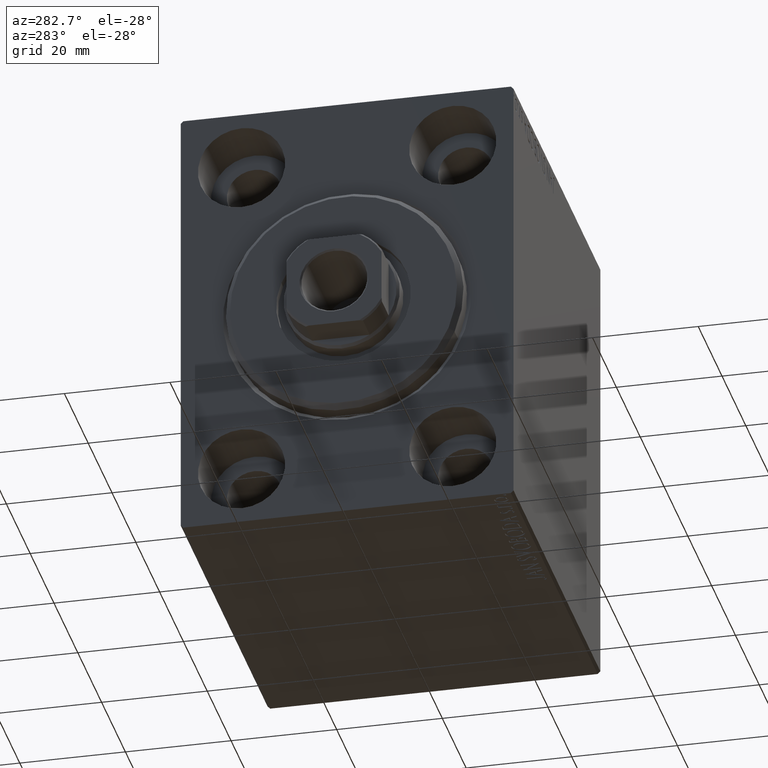
[diagram: clean part render]
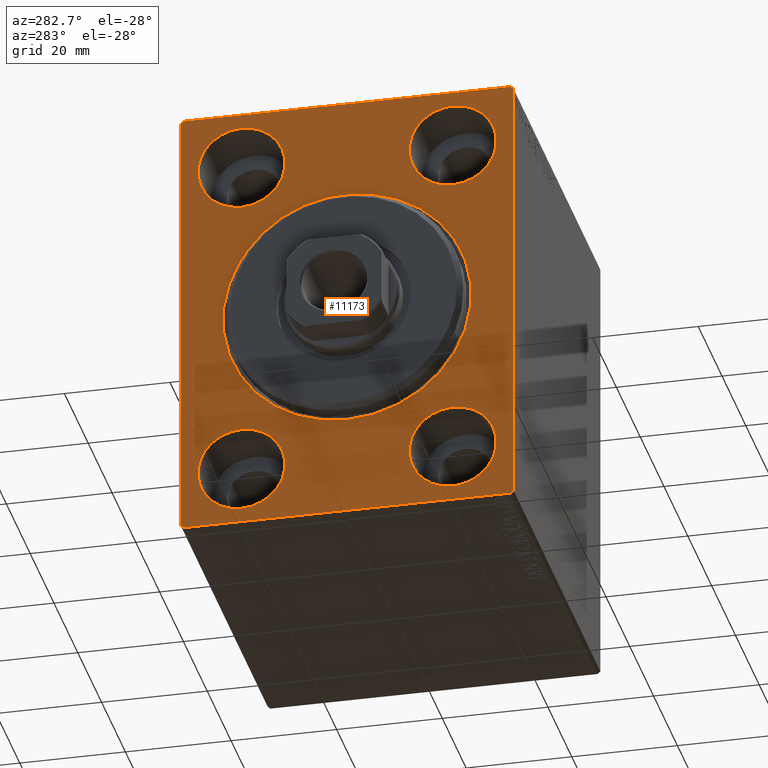
[diagram: same view with one face highlighted and labeled with its STEP entity id]
A machine part, auxiliary view. The second image highlights one B-rep face of the part: STEP entity #11173.
In plain terms, the highlighted planar face has unit normal (1, 0, 0).
Its self-contained STEP definition (entity closure, byte-faithful):
#508 = CARTESIAN_POINT ( 'NONE',  ( 0.000000000000000000, -20.00000000000000355, -39.74999999999999289 ) ) ;
#661 = ORIENTED_EDGE ( 'NONE', *, *, #4673, .F. ) ;
#667 = VERTEX_POINT ( 'NONE', #20773 ) ;
#994 = DIRECTION ( 'NONE',  ( 1.000000000000000000, 0.000000000000000000, 0.000000000000000000 ) ) ;
#1085 = CARTESIAN_POINT ( 'NONE',  ( 0.000000000000000000, 31.00000000000001421, -42.50000000000000711 ) ) ;
#1182 = FACE_OUTER_BOUND ( 'NONE', #41743, .T. ) ;
#1453 = CARTESIAN_POINT ( 'NONE',  ( 0.000000000000000000, -19.99999999999999645, 39.74999999999999289 ) ) ;
#2063 = DIRECTION ( 'NONE',  ( 1.000000000000000000, 0.000000000000000000, 0.000000000000000000 ) ) ;
#2166 = EDGE_CURVE ( 'NONE', #27525, #32272, #26700, .T. ) ;
#2452 = DIRECTION ( 'NONE',  ( 0.000000000000000000, 0.000000000000000000, 1.000000000000000000 ) ) ;
#2460 = ORIENTED_EDGE ( 'NONE', *, *, #17244, .F. ) ;
#2686 = VECTOR ( 'NONE', #26496, 1000.000000000000114 ) ;
#2808 = VERTEX_POINT ( 'NONE', #12882 ) ;
#3252 = ORIENTED_EDGE ( 'NONE', *, *, #26462, .T. ) ;
#3406 = EDGE_CURVE ( 'NONE', #667, #26705, #16681, .T. ) ;
#3726 = CIRCLE ( 'NONE', #36895, 8.250000000000000000 ) ;
#3899 = AXIS2_PLACEMENT_3D ( 'NONE', #4319, #994, #27722 ) ;
#4319 = CARTESIAN_POINT ( 'NONE',  ( 0.000000000000000000, 0.000000000000000000, 0.000000000000000000 ) ) ;
#4426 = LINE ( 'NONE', #7731, #25029 ) ;
#4442 = CARTESIAN_POINT ( 'NONE',  ( 0.000000000000000000, 20.00000000000000355, 31.50000000000000000 ) ) ;
#4610 = VERTEX_POINT ( 'NONE', #10088 ) ;
#4673 = EDGE_CURVE ( 'NONE', #10067, #26705, #39730, .T. ) ;
#4732 = FACE_BOUND ( 'NONE', #17452, .T. ) ;
#5019 = DIRECTION ( 'NONE',  ( 0.000000000000000000, 0.000000000000000000, 1.000000000000000000 ) ) ;
#5331 = CARTESIAN_POINT ( 'NONE',  ( 0.000000000000000000, -20.00000000000000355, -31.49999999999999289 ) ) ;
#5380 = PLANE ( 'NONE',  #14187 ) ;
#5647 = DIRECTION ( 'NONE',  ( -1.000000000000000000, 0.000000000000000000, 0.000000000000000000 ) ) ;
#5685 = AXIS2_PLACEMENT_3D ( 'NONE', #30267, #36709, #2452 ) ;
#5711 = CARTESIAN_POINT ( 'NONE',  ( 0.000000000000000000, -20.00000000000000355, -31.49999999999999289 ) ) ;
#5805 = VECTOR ( 'NONE', #20740, 1000.000000000000000 ) ;
#6113 = CARTESIAN_POINT ( 'NONE',  ( 0.000000000000000000, -31.50000000000000000, 42.49999999999999289 ) ) ;
#6306 = CARTESIAN_POINT ( 'NONE',  ( 0.000000000000000000, 20.00000000000000355, 23.25000000000000355 ) ) ;
#6328 = DIRECTION ( 'NONE',  ( 0.000000000000000000, 0.000000000000000000, -1.000000000000000000 ) ) ;
#6403 = CARTESIAN_POINT ( 'NONE',  ( 0.000000000000000000, -31.50000000000000000, 41.99999999999999289 ) ) ;
#7046 = DIRECTION ( 'NONE',  ( 0.000000000000000000, 0.000000000000000000, 1.000000000000000000 ) ) ;
#7731 = CARTESIAN_POINT ( 'NONE',  ( 0.000000000000000000, 31.00000000000000000, 42.50000000000000711 ) ) ;
#7913 = EDGE_CURVE ( 'NONE', #17258, #14310, #16956, .T. ) ;
#7980 = CIRCLE ( 'NONE', #9362, 8.250000000000000000 ) ;
#8245 = DIRECTION ( 'NONE',  ( 1.000000000000000000, 0.000000000000000000, 0.000000000000000000 ) ) ;
#8567 = CARTESIAN_POINT ( 'NONE',  ( 0.000000000000000000, 31.50000000000000000, 42.50000000000000711 ) ) ;
#8659 = ORIENTED_EDGE ( 'NONE', *, *, #19597, .F. ) ;
#8694 = FACE_BOUND ( 'NONE', #27913, .T. ) ;
#9193 = ORIENTED_EDGE ( 'NONE', *, *, #14999, .F. ) ;
#9362 = AXIS2_PLACEMENT_3D ( 'NONE', #32599, #5647, #29931 ) ;
#9510 = DIRECTION ( 'NONE',  ( 0.000000000000000000, 0.000000000000000000, 1.000000000000000000 ) ) ;
#10033 = AXIS2_PLACEMENT_3D ( 'NONE', #31965, #35292, #5019 ) ;
#10067 = VERTEX_POINT ( 'NONE', #43490 ) ;
#10088 = CARTESIAN_POINT ( 'NONE',  ( 0.000000000000000000, 19.99999999999999645, -23.24999999999999289 ) ) ;
#10750 = ORIENTED_EDGE ( 'NONE', *, *, #22716, .F. ) ;
#11173 = ADVANCED_FACE ( 'NONE', ( #8694, #28780, #11788, #38559, #4732, #1182 ), #5380, .F. ) ;
#11249 = LINE ( 'NONE', #16624, #5805 ) ;
#11254 = CIRCLE ( 'NONE', #21099, 8.250000000000000000 ) ;
#11535 = ORIENTED_EDGE ( 'NONE', *, *, #2166, .T. ) ;
#11573 = CARTESIAN_POINT ( 'NONE',  ( 0.000000000000000000, 0.000000000000000000, 0.000000000000000000 ) ) ;
#11788 = FACE_BOUND ( 'NONE', #16595, .T. ) ;
#12480 = CARTESIAN_POINT ( 'NONE',  ( 0.000000000000000000, 20.00000000000000355, 39.74999999999999289 ) ) ;
#12603 = VECTOR ( 'NONE', #6328, 1000.000000000000000 ) ;
#12807 = LINE ( 'NONE', #29002, #2686 ) ;
#12882 = CARTESIAN_POINT ( 'NONE',  ( 0.000000000000000000, 19.99999999999999645, -39.74999999999999289 ) ) ;
#14187 = AXIS2_PLACEMENT_3D ( 'NONE', #11573, #2063, #42094 ) ;
#14310 = VERTEX_POINT ( 'NONE', #12480 ) ;
#14767 = ORIENTED_EDGE ( 'NONE', *, *, #23788, .F. ) ;
#14805 = DIRECTION ( 'NONE',  ( 0.000000000000000000, 0.000000000000000000, 1.000000000000000000 ) ) ;
#14999 = EDGE_CURVE ( 'NONE', #28408, #16553, #3726, .T. ) ;
#15662 = CARTESIAN_POINT ( 'NONE',  ( 0.000000000000000000, 0.000000000000000000, 23.50000000000003197 ) ) ;
#15791 = ORIENTED_EDGE ( 'NONE', *, *, #3406, .T. ) ;
#16225 = VECTOR ( 'NONE', #32636, 1000.000000000000000 ) ;
#16553 = VERTEX_POINT ( 'NONE', #35822 ) ;
#16595 = EDGE_LOOP ( 'NONE', ( #2460, #36640 ) ) ;
#16624 = CARTESIAN_POINT ( 'NONE',  ( 0.000000000000000000, -31.50000000000000000, -42.50000000000000711 ) ) ;
#16681 = LINE ( 'NONE', #27065, #29506 ) ;
#16956 = CIRCLE ( 'NONE', #5685, 8.249999999999992895 ) ;
#17244 = EDGE_CURVE ( 'NONE', #18587, #17331, #17772, .T. ) ;
#17258 = VERTEX_POINT ( 'NONE', #6306 ) ;
#17331 = VERTEX_POINT ( 'NONE', #41020 ) ;
#17396 = ORIENTED_EDGE ( 'NONE', *, *, #37939, .F. ) ;
#17452 = EDGE_LOOP ( 'NONE', ( #37488, #9193 ) ) ;
#17570 = EDGE_CURVE ( 'NONE', #667, #21265, #11249, .T. ) ;
#17576 = VERTEX_POINT ( 'NONE', #30918 ) ;
#17772 = CIRCLE ( 'NONE', #10033, 8.249999999999992895 ) ;
#18166 = DIRECTION ( 'NONE',  ( 0.000000000000000000, 0.000000000000000000, -1.000000000000000000 ) ) ;
#18587 = VERTEX_POINT ( 'NONE', #1453 ) ;
#19544 = ORIENTED_EDGE ( 'NONE', *, *, #25908, .T. ) ;
#19597 = EDGE_CURVE ( 'NONE', #4610, #2808, #7980, .T. ) ;
#19719 = CARTESIAN_POINT ( 'NONE',  ( 0.000000000000000000, -31.50000000000000000, -42.00000000000000711 ) ) ;
#19816 = DIRECTION ( 'NONE',  ( 0.000000000000000000, 0.000000000000000000, 1.000000000000000000 ) ) ;
#20248 = EDGE_CURVE ( 'NONE', #16553, #28408, #21353, .T. ) ;
#20601 = CARTESIAN_POINT ( 'NONE',  ( 0.000000000000000000, 2.877919977996283870E-15, -23.50000000000003197 ) ) ;
#20740 = DIRECTION ( 'NONE',  ( 0.000000000000000000, 1.000000000000000000, 0.000000000000000000 ) ) ;
#20773 = CARTESIAN_POINT ( 'NONE',  ( 0.000000000000000000, -31.00000000000000000, -42.50000000000000711 ) ) ;
#21099 = AXIS2_PLACEMENT_3D ( 'NONE', #39822, #29610, #9510 ) ;
#21265 = VERTEX_POINT ( 'NONE', #1085 ) ;
#21353 = CIRCLE ( 'NONE', #29820, 8.250000000000000000 ) ;
#21908 = CIRCLE ( 'NONE', #36766, 8.249999999999992895 ) ;
#22119 = VECTOR ( 'NONE', #23260, 1000.000000000000000 ) ;
#22716 = EDGE_CURVE ( 'NONE', #17576, #36891, #43430, .T. ) ;
#23260 = DIRECTION ( 'NONE',  ( 0.000000000000000000, -1.632680918566406300E-16, 1.000000000000000000 ) ) ;
#23351 = DIRECTION ( 'NONE',  ( -1.000000000000000000, 0.000000000000000000, 0.000000000000000000 ) ) ;
#23788 = EDGE_CURVE ( 'NONE', #14310, #17258, #42671, .T. ) ;
#24080 = VERTEX_POINT ( 'NONE', #34665 ) ;
#24772 = VECTOR ( 'NONE', #43340, 1000.000000000000114 ) ;
#24926 = ORIENTED_EDGE ( 'NONE', *, *, #40615, .F. ) ;
#25029 = VECTOR ( 'NONE', #41136, 1000.000000000000114 ) ;
#25908 = EDGE_CURVE ( 'NONE', #34863, #36891, #4426, .T. ) ;
#26056 = LINE ( 'NONE', #6403, #24772 ) ;
#26462 = EDGE_CURVE ( 'NONE', #32272, #27525, #37767, .T. ) ;
#26496 = DIRECTION ( 'NONE',  ( 0.000000000000000000, -0.7071067811865474617, -0.7071067811865474617 ) ) ;
#26700 = CIRCLE ( 'NONE', #40850, 23.50000000000003197 ) ;
#26705 = VERTEX_POINT ( 'NONE', #19719 ) ;
#27065 = CARTESIAN_POINT ( 'NONE',  ( 0.000000000000000000, -31.00000000000000000, -42.50000000000000711 ) ) ;
#27525 = VERTEX_POINT ( 'NONE', #15662 ) ;
#27571 = CARTESIAN_POINT ( 'NONE',  ( 0.000000000000000000, -19.99999999999999645, 31.50000000000000000 ) ) ;
#27678 = CARTESIAN_POINT ( 'NONE',  ( 0.000000000000000000, 0.000000000000000000, 0.000000000000000000 ) ) ;
#27722 = DIRECTION ( 'NONE',  ( 0.000000000000000000, 0.000000000000000000, -1.000000000000000000 ) ) ;
#27913 = EDGE_LOOP ( 'NONE', ( #11535, #3252 ) ) ;
#28408 = VERTEX_POINT ( 'NONE', #508 ) ;
#28780 = FACE_BOUND ( 'NONE', #37081, .T. ) ;
#29002 = CARTESIAN_POINT ( 'NONE',  ( 0.000000000000000000, 31.50000000000001421, -42.00000000000000711 ) ) ;
#29087 = LINE ( 'NONE', #8567, #16225 ) ;
#29506 = VECTOR ( 'NONE', #40594, 1000.000000000000114 ) ;
#29610 = DIRECTION ( 'NONE',  ( -1.000000000000000000, 0.000000000000000000, 0.000000000000000000 ) ) ;
#29820 = AXIS2_PLACEMENT_3D ( 'NONE', #5331, #43134, #32923 ) ;
#29931 = DIRECTION ( 'NONE',  ( 0.000000000000000000, 0.000000000000000000, 1.000000000000000000 ) ) ;
#30267 = CARTESIAN_POINT ( 'NONE',  ( 0.000000000000000000, 20.00000000000000355, 31.50000000000000000 ) ) ;
#30918 = CARTESIAN_POINT ( 'NONE',  ( 0.000000000000000000, 31.50000000000001421, -42.00000000000000711 ) ) ;
#31343 = EDGE_LOOP ( 'NONE', ( #14767, #39529 ) ) ;
#31965 = CARTESIAN_POINT ( 'NONE',  ( 0.000000000000000000, -19.99999999999999645, 31.50000000000000000 ) ) ;
#32272 = VERTEX_POINT ( 'NONE', #20601 ) ;
#32599 = CARTESIAN_POINT ( 'NONE',  ( 0.000000000000000000, 19.99999999999999645, -31.49999999999999289 ) ) ;
#32636 = DIRECTION ( 'NONE',  ( 0.000000000000000000, -1.000000000000000000, -2.202823461557850341E-16 ) ) ;
#32923 = DIRECTION ( 'NONE',  ( 0.000000000000000000, 0.000000000000000000, 1.000000000000000000 ) ) ;
#33890 = CARTESIAN_POINT ( 'NONE',  ( 0.000000000000000000, 31.50000000000001421, -42.50000000000000711 ) ) ;
#33965 = ORIENTED_EDGE ( 'NONE', *, *, #43719, .T. ) ;
#34665 = CARTESIAN_POINT ( 'NONE',  ( 0.000000000000000000, -31.00000000000000000, 42.49999999999999289 ) ) ;
#34863 = VERTEX_POINT ( 'NONE', #40468 ) ;
#34904 = EDGE_CURVE ( 'NONE', #17576, #21265, #12807, .T. ) ;
#35292 = DIRECTION ( 'NONE',  ( -1.000000000000000000, 0.000000000000000000, 0.000000000000000000 ) ) ;
#35822 = CARTESIAN_POINT ( 'NONE',  ( 0.000000000000000000, -20.00000000000000355, -23.24999999999999289 ) ) ;
#35986 = CARTESIAN_POINT ( 'NONE',  ( 0.000000000000000000, 31.50000000000000000, 42.00000000000000711 ) ) ;
#36311 = AXIS2_PLACEMENT_3D ( 'NONE', #4442, #38706, #14805 ) ;
#36640 = ORIENTED_EDGE ( 'NONE', *, *, #42373, .F. ) ;
#36709 = DIRECTION ( 'NONE',  ( -1.000000000000000000, 0.000000000000000000, 0.000000000000000000 ) ) ;
#36766 = AXIS2_PLACEMENT_3D ( 'NONE', #27571, #37339, #7046 ) ;
#36891 = VERTEX_POINT ( 'NONE', #35986 ) ;
#36895 = AXIS2_PLACEMENT_3D ( 'NONE', #5711, #23351, #19816 ) ;
#36947 = ORIENTED_EDGE ( 'NONE', *, *, #17570, .F. ) ;
#37081 = EDGE_LOOP ( 'NONE', ( #8659, #17396 ) ) ;
#37339 = DIRECTION ( 'NONE',  ( -1.000000000000000000, 0.000000000000000000, 0.000000000000000000 ) ) ;
#37488 = ORIENTED_EDGE ( 'NONE', *, *, #20248, .F. ) ;
#37767 = CIRCLE ( 'NONE', #3899, 23.50000000000003197 ) ;
#37939 = EDGE_CURVE ( 'NONE', #2808, #4610, #11254, .T. ) ;
#38549 = ORIENTED_EDGE ( 'NONE', *, *, #34904, .T. ) ;
#38559 = FACE_BOUND ( 'NONE', #31343, .T. ) ;
#38706 = DIRECTION ( 'NONE',  ( -1.000000000000000000, 0.000000000000000000, 0.000000000000000000 ) ) ;
#39529 = ORIENTED_EDGE ( 'NONE', *, *, #7913, .F. ) ;
#39730 = LINE ( 'NONE', #6113, #12603 ) ;
#39822 = CARTESIAN_POINT ( 'NONE',  ( 0.000000000000000000, 19.99999999999999645, -31.49999999999999289 ) ) ;
#40468 = CARTESIAN_POINT ( 'NONE',  ( 0.000000000000000000, 31.00000000000000000, 42.50000000000000711 ) ) ;
#40594 = DIRECTION ( 'NONE',  ( -0.000000000000000000, -0.7071067811865474617, 0.7071067811865474617 ) ) ;
#40615 = EDGE_CURVE ( 'NONE', #34863, #24080, #29087, .T. ) ;
#40850 = AXIS2_PLACEMENT_3D ( 'NONE', #27678, #8245, #18166 ) ;
#41020 = CARTESIAN_POINT ( 'NONE',  ( 0.000000000000000000, -19.99999999999999645, 23.25000000000000355 ) ) ;
#41136 = DIRECTION ( 'NONE',  ( -0.000000000000000000, 0.7071067811865474617, -0.7071067811865474617 ) ) ;
#41743 = EDGE_LOOP ( 'NONE', ( #661, #33965, #24926, #19544, #10750, #38549, #36947, #15791 ) ) ;
#42094 = DIRECTION ( 'NONE',  ( 0.000000000000000000, 0.000000000000000000, -1.000000000000000000 ) ) ;
#42373 = EDGE_CURVE ( 'NONE', #17331, #18587, #21908, .T. ) ;
#42671 = CIRCLE ( 'NONE', #36311, 8.249999999999992895 ) ;
#43134 = DIRECTION ( 'NONE',  ( -1.000000000000000000, 0.000000000000000000, 0.000000000000000000 ) ) ;
#43340 = DIRECTION ( 'NONE',  ( -0.000000000000000000, 0.7071067811865474617, 0.7071067811865474617 ) ) ;
#43430 = LINE ( 'NONE', #33890, #22119 ) ;
#43490 = CARTESIAN_POINT ( 'NONE',  ( 0.000000000000000000, -31.50000000000000000, 41.99999999999999289 ) ) ;
#43719 = EDGE_CURVE ( 'NONE', #10067, #24080, #26056, .T. ) ;